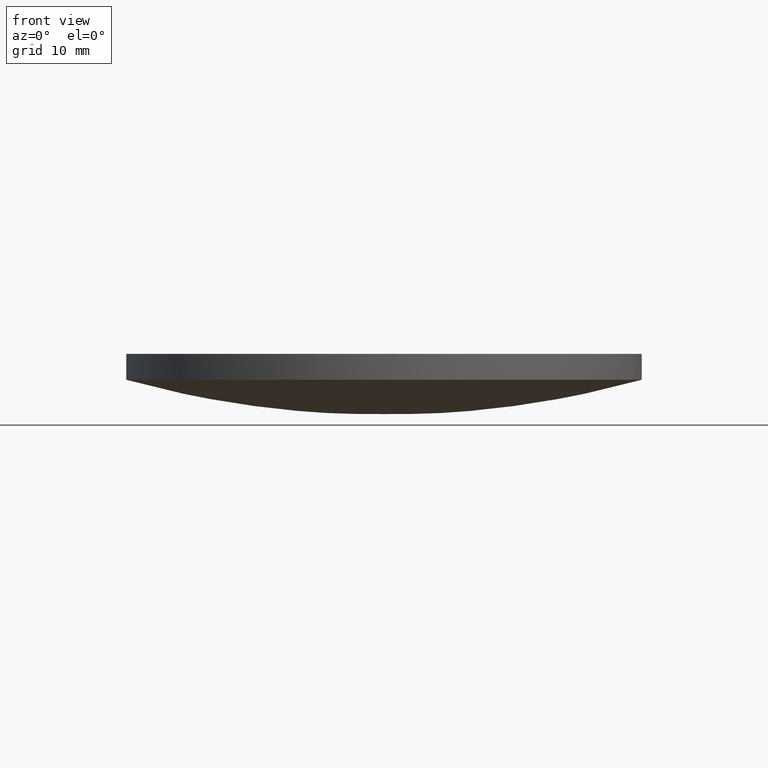
[diagram: clean part render]
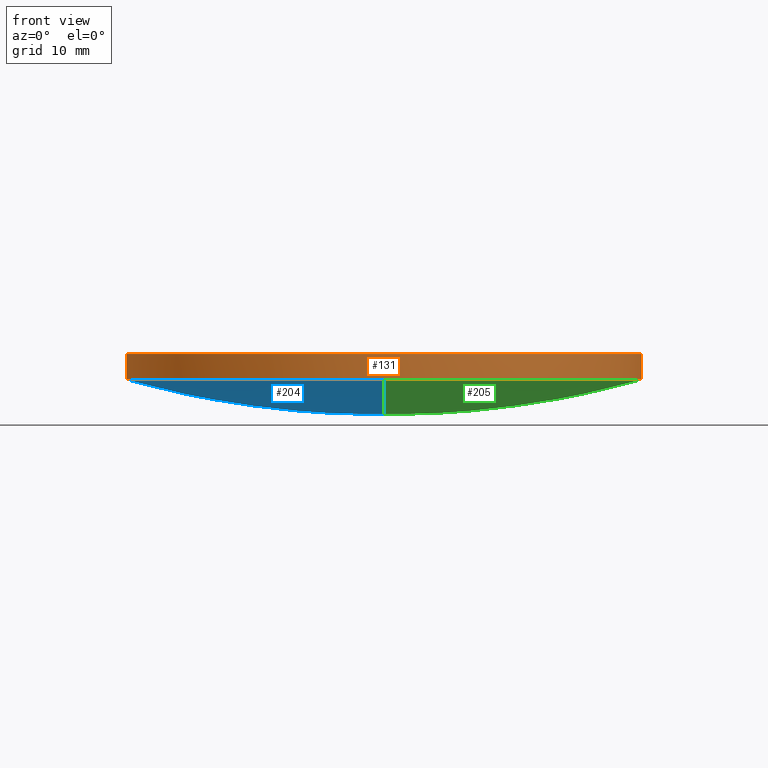
[diagram: same view with three faces highlighted in distinct colors, each labeled with its STEP entity id]
A machine part, front view with three faces highlighted in distinct colors.
Their STEP definitions:

[orange] entity #131 — the highlighted cylindrical surface (partial cylindrical patch) has radius 25.4 mm, axis along (0, 0, 1).
#8 = ORIENTED_EDGE ( 'NONE', *, *, #163, .F. ) ;
#10 = CARTESIAN_POINT ( 'NONE',  ( -25.39999999999999900, 7.995584178184967200E-015, 6.000000000000000000 ) ) ;
#15 = DIRECTION ( 'NONE',  ( -0.0000000000000000000, -0.0000000000000000000, -1.000000000000000000 ) ) ;
#23 = AXIS2_PLACEMENT_3D ( 'NONE', #153, #192, #90 ) ;
#32 = CARTESIAN_POINT ( 'NONE',  ( -25.39999999999999900, 7.995584178184967200E-015, 3.450618463287360000 ) ) ;
#38 = VECTOR ( 'NONE', #203, 1000.000000000000000 ) ;
#50 = ORIENTED_EDGE ( 'NONE', *, *, #98, .F. ) ;
#51 = VERTEX_POINT ( 'NONE', #200 ) ;
#66 = EDGE_CURVE ( 'NONE', #132, #199, #175, .T. ) ;
#87 = EDGE_CURVE ( 'NONE', #51, #109, #218, .T. ) ;
#90 = DIRECTION ( 'NONE',  ( 1.000000000000000000, 0.0000000000000000000, 0.0000000000000000000 ) ) ;
#92 = VERTEX_POINT ( 'NONE', #130 ) ;
#95 = AXIS2_PLACEMENT_3D ( 'NONE', #150, #102, #232 ) ;
#96 = DIRECTION ( 'NONE',  ( 0.0000000000000000000, 0.0000000000000000000, 1.000000000000000000 ) ) ;
#97 = CIRCLE ( 'NONE', #201, 25.39999999999999900 ) ;
#98 = EDGE_CURVE ( 'NONE', #92, #51, #231, .T. ) ;
#99 = DIRECTION ( 'NONE',  ( 1.000000000000000000, 0.0000000000000000000, 0.0000000000000000000 ) ) ;
#102 = DIRECTION ( 'NONE',  ( 0.0000000000000000000, 0.0000000000000000000, 1.000000000000000000 ) ) ;
#103 = CARTESIAN_POINT ( 'NONE',  ( 9.992007221626412800E-016, 4.884981308350691100E-015, 3.450618463287360000 ) ) ;
#109 = VERTEX_POINT ( 'NONE', #10 ) ;
#118 = VECTOR ( 'NONE', #96, 1000.000000000000000 ) ;
#119 = DIRECTION ( 'NONE',  ( -0.0000000000000000000, -0.0000000000000000000, -1.000000000000000000 ) ) ;
#128 = ORIENTED_EDGE ( 'NONE', *, *, #87, .F. ) ;
#130 = CARTESIAN_POINT ( 'NONE',  ( 3.540965199865962800E-014, -25.39999999999998100, 3.450618463287364900 ) ) ;
#131 = ADVANCED_FACE ( 'NONE', ( #145 ), #213, .T. ) ;
#132 = VERTEX_POINT ( 'NONE', #134 ) ;
#134 = CARTESIAN_POINT ( 'NONE',  ( 25.39999999999999900, 4.884981308350691100E-015, 3.450618463287360000 ) ) ;
#145 = FACE_OUTER_BOUND ( 'NONE', #187, .T. ) ;
#150 = CARTESIAN_POINT ( 'NONE',  ( 9.992007221626412800E-016, 4.884981308350691100E-015, 3.450618463287360000 ) ) ;
#153 = CARTESIAN_POINT ( 'NONE',  ( 9.992007221626412800E-016, 4.884981308350691100E-015, 6.000000000000000000 ) ) ;
#156 = CIRCLE ( 'NONE', #23, 25.39999999999999900 ) ;
#163 = EDGE_CURVE ( 'NONE', #132, #92, #97, .T. ) ;
#175 = LINE ( 'NONE', #180, #38 ) ;
#177 = AXIS2_PLACEMENT_3D ( 'NONE', #103, #15, #184 ) ;
#180 = CARTESIAN_POINT ( 'NONE',  ( 25.39999999999999900, 4.884981308350691100E-015, 3.450618463287360000 ) ) ;
#183 = ORIENTED_EDGE ( 'NONE', *, *, #66, .T. ) ;
#184 = DIRECTION ( 'NONE',  ( 1.000000000000000000, 0.0000000000000000000, 0.0000000000000000000 ) ) ;
#187 = EDGE_LOOP ( 'NONE', ( #128, #50, #8, #183, #226 ) ) ;
#188 = CARTESIAN_POINT ( 'NONE',  ( 25.39999999999999900, 4.884981308350691100E-015, 6.000000000000000000 ) ) ;
#192 = DIRECTION ( 'NONE',  ( -0.0000000000000000000, -0.0000000000000000000, -1.000000000000000000 ) ) ;
#199 = VERTEX_POINT ( 'NONE', #188 ) ;
#200 = CARTESIAN_POINT ( 'NONE',  ( -25.39999999999999900, 7.995584178184967200E-015, 3.450618463287360000 ) ) ;
#201 = AXIS2_PLACEMENT_3D ( 'NONE', #206, #119, #99 ) ;
#203 = DIRECTION ( 'NONE',  ( 0.0000000000000000000, 0.0000000000000000000, 1.000000000000000000 ) ) ;
#206 = CARTESIAN_POINT ( 'NONE',  ( 9.992007221626412800E-016, 4.884981308350691100E-015, 3.450618463287360000 ) ) ;
#213 = CYLINDRICAL_SURFACE ( 'NONE', #95, 25.39999999999999900 ) ;
#218 = LINE ( 'NONE', #32, #118 ) ;
#226 = ORIENTED_EDGE ( 'NONE', *, *, #234, .T. ) ;
#231 = CIRCLE ( 'NONE', #177, 25.39999999999999900 ) ;
#232 = DIRECTION ( 'NONE',  ( 1.000000000000000000, 0.0000000000000000000, 0.0000000000000000000 ) ) ;
#234 = EDGE_CURVE ( 'NONE', #199, #109, #156, .T. ) ;

[blue] entity #204 — the highlighted face is a freeform B-spline surface patch.
#7 = CIRCLE ( 'NONE', #9, 25.39999999999999900 ) ;
#9 = AXIS2_PLACEMENT_3D ( 'NONE', #195, #77, #61 ) ;
#15 = DIRECTION ( 'NONE',  ( -0.0000000000000000000, -0.0000000000000000000, -1.000000000000000000 ) ) ;
#17 = VERTEX_POINT ( 'NONE', #144 ) ;
#18 = CARTESIAN_POINT ( 'NONE',  ( 1.734723475976807100E-014, 25.69722050648948700, 3.533411067814825800 ) ) ;
#51 = VERTEX_POINT ( 'NONE', #200 ) ;
#56 = CARTESIAN_POINT ( 'NONE',  ( -25.87271340151603400, 8.783042982134942300, 2.328503816308475500 ) ) ;
#61 = DIRECTION ( 'NONE',  ( 1.000000000000000000, -8.881784197001252300E-016, 0.0000000000000000000 ) ) ;
#71 = CARTESIAN_POINT ( 'NONE',  ( -8.327538271341444100, -25.69722050648948300, 3.533411067814838300 ) ) ;
#73 = CARTESIAN_POINT ( 'NONE',  ( -17.43572612724801700, 8.783042982134940500, -0.02167100524766300100 ) ) ;
#77 = DIRECTION ( 'NONE',  ( -0.0000000000000000000, -0.0000000000000000000, -1.000000000000000000 ) ) ;
#82 = ORIENTED_EDGE ( 'NONE', *, *, #216, .T. ) ;
#84 = EDGE_LOOP ( 'NONE', ( #179, #135, #82 ) ) ;
#85 = DIRECTION ( 'NONE',  ( 1.000000000000000000, 9.414397848674539600E-032, 3.084613711104210100E-016 ) ) ;
#92 = VERTEX_POINT ( 'NONE', #130 ) ;
#98 = EDGE_CURVE ( 'NONE', #92, #51, #231, .T. ) ;
#103 = CARTESIAN_POINT ( 'NONE',  ( 9.992007221626412800E-016, 4.884981308350691100E-015, 3.450618463287360000 ) ) ;
#105 = AXIS2_PLACEMENT_3D ( 'NONE', #146, #85, #212 ) ;
#113 = CIRCLE ( 'NONE', #105, 95.20999999999999400 ) ;
#114 = CARTESIAN_POINT ( 'NONE',  ( -8.327538271341438800, 25.69722050648949000, 3.533411067814824900 ) ) ;
#116 = CARTESIAN_POINT ( 'NONE',  ( -16.57836865590123300, 25.69722050648949400, 4.661104122631369900 ) ) ;
#130 = CARTESIAN_POINT ( 'NONE',  ( 3.540965199865962800E-014, -25.39999999999998100, 3.450618463287364900 ) ) ;
#133 = CARTESIAN_POINT ( 'NONE',  ( 1.387778780781445700E-014, -8.783042982134928100, -1.207683191819579600 ) ) ;
#135 = ORIENTED_EDGE ( 'NONE', *, *, #98, .T. ) ;
#141 = EDGE_CURVE ( 'NONE', #92, #17, #113, .T. ) ;
#144 = CARTESIAN_POINT ( 'NONE',  ( 3.540965199865962800E-014, 25.39999999999999100, 3.450618463287351100 ) ) ;
#146 = CARTESIAN_POINT ( 'NONE',  ( 7.105427357601000300E-015, 7.105427357601000300E-015, 95.20999999999999400 ) ) ;
#147 = CARTESIAN_POINT ( 'NONE',  ( -17.43572612724802100, -8.783042982134926300, -0.02167100524765129200 ) ) ;
#165 = CARTESIAN_POINT ( 'NONE',  ( -25.87271340151603700, -8.783042982134928100, 2.328503816308487900 ) ) ;
#166 = CARTESIAN_POINT ( 'NONE',  ( 1.387778780781445700E-014, -25.69722050648947900, 3.533411067814838300 ) ) ;
#177 = AXIS2_PLACEMENT_3D ( 'NONE', #103, #15, #184 ) ;
#179 = ORIENTED_EDGE ( 'NONE', *, *, #141, .F. ) ;
#184 = DIRECTION ( 'NONE',  ( 1.000000000000000000, 0.0000000000000000000, 0.0000000000000000000 ) ) ;
#186 = CARTESIAN_POINT ( 'NONE',  ( -16.57836865590123700, -25.69722050648947900, 4.661104122631381400 ) ) ;
#191 = FACE_OUTER_BOUND ( 'NONE', #84, .T. ) ;
#195 = CARTESIAN_POINT ( 'NONE',  ( 9.992007221626412800E-016, 4.884981308350691100E-015, 3.450618463287360000 ) ) ;
#200 = CARTESIAN_POINT ( 'NONE',  ( -25.39999999999999900, 7.995584178184967200E-015, 3.450618463287360000 ) ) ;
#204 = ADVANCED_FACE ( 'NONE', ( #191 ), #210, .T. ) ;
#209 = CARTESIAN_POINT ( 'NONE',  ( 2.081668171172168500E-014, 8.783042982134942300, -1.207683191819589800 ) ) ;
#210 =( BOUNDED_SURFACE ( )  B_SPLINE_SURFACE ( 3, 3, ( 
 ( #233, #186, #71, #166 ),
 ( #165, #147, #229, #133 ),
 ( #56, #73, #227, #209 ),
 ( #211, #116, #114, #18 ) ),
 .UNSPECIFIED., .F., .F., .F. ) 
 B_SPLINE_SURFACE_WITH_KNOTS ( ( 4, 4 ),
 ( 4, 4 ),
 ( 0.0000000000000000000, 1.000000000000000000 ),
 ( 0.0000000000000000000, 1.000000000000000000 ),
 .UNSPECIFIED. ) 
 GEOMETRIC_REPRESENTATION_ITEM ( )  RATIONAL_B_SPLINE_SURFACE ( (
 ( 1.000000000000000000, 0.9938590986289715900, 0.9938590986289715900, 1.000000000000000000),
 ( 0.9752588238783401800, 0.9692698556296781600, 0.9692698556296781600, 0.9752588238783401800),
 ( 0.9752588238783401800, 0.9692698556296781600, 0.9692698556296781600, 0.9752588238783401800),
 ( 1.000000000000000000, 0.9938590986289715900, 0.9938590986289715900, 1.000000000000000000) ) ) 
 REPRESENTATION_ITEM ( '' )  SURFACE ( )  );
#211 = CARTESIAN_POINT ( 'NONE',  ( -24.60048854681737000, 25.69722050648949000, 6.895715076785199600 ) ) ;
#212 = DIRECTION ( 'NONE',  ( 0.0000000000000000000, -1.000000000000000000, 2.915195422290611700E-016 ) ) ;
#216 = EDGE_CURVE ( 'NONE', #51, #17, #7, .T. ) ;
#227 = CARTESIAN_POINT ( 'NONE',  ( -8.758200497707079500, 8.783042982134940500, -1.207683191819591200 ) ) ;
#229 = CARTESIAN_POINT ( 'NONE',  ( -8.758200497707084900, -8.783042982134926300, -1.207683191819580100 ) ) ;
#231 = CIRCLE ( 'NONE', #177, 25.39999999999999900 ) ;
#233 = CARTESIAN_POINT ( 'NONE',  ( -24.60048854681737800, -25.69722050648947600, 6.895715076785213800 ) ) ;

[green] entity #205 — the highlighted face is a freeform B-spline surface patch.
#1 = CARTESIAN_POINT ( 'NONE',  ( 16.57836865590124400, 25.69722050648949000, 4.661104122631375200 ) ) ;
#4 = CARTESIAN_POINT ( 'NONE',  ( 25.87271340151602000, -8.783042982134931600, 2.328503816308484400 ) ) ;
#17 = VERTEX_POINT ( 'NONE', #144 ) ;
#19 = CARTESIAN_POINT ( 'NONE',  ( 16.57836865590124400, -25.69722050648948300, 4.661104122631386700 ) ) ;
#21 = CARTESIAN_POINT ( 'NONE',  ( 8.327538271341469000, 25.69722050648949000, 3.533411067814825800 ) ) ;
#22 = CARTESIAN_POINT ( 'NONE',  ( 17.43572612724802100, -8.783042982134928100, -0.02167100524764565100 ) ) ;
#34 =( BOUNDED_SURFACE ( )  B_SPLINE_SURFACE ( 3, 3, ( 
 ( #149, #117, #19, #74 ),
 ( #63, #106, #22, #4 ),
 ( #235, #137, #76, #174 ),
 ( #120, #21, #1, #79 ) ),
 .UNSPECIFIED., .F., .F., .F. ) 
 B_SPLINE_SURFACE_WITH_KNOTS ( ( 4, 4 ),
 ( 4, 4 ),
 ( 0.0000000000000000000, 1.000000000000000000 ),
 ( 0.0000000000000000000, 1.000000000000000000 ),
 .UNSPECIFIED. ) 
 GEOMETRIC_REPRESENTATION_ITEM ( )  RATIONAL_B_SPLINE_SURFACE ( (
 ( 1.000000000000000000, 0.9938590986289715900, 0.9938590986289715900, 1.000000000000000000),
 ( 0.9752588238783401800, 0.9692698556296781600, 0.9692698556296781600, 0.9752588238783401800),
 ( 0.9752588238783401800, 0.9692698556296781600, 0.9692698556296781600, 0.9752588238783401800),
 ( 1.000000000000000000, 0.9938590986289715900, 0.9938590986289715900, 1.000000000000000000) ) ) 
 REPRESENTATION_ITEM ( '' )  SURFACE ( )  );
#36 = DIRECTION ( 'NONE',  ( 1.000000000000000000, 1.776356839400250500E-015, 0.0000000000000000000 ) ) ;
#54 = FACE_OUTER_BOUND ( 'NONE', #208, .T. ) ;
#63 = CARTESIAN_POINT ( 'NONE',  ( 3.684655811423986700E-014, -8.783042982134933400, -1.207683191819580300 ) ) ;
#74 = CARTESIAN_POINT ( 'NONE',  ( 24.60048854681736000, -25.69722050648947900, 6.895715076785210200 ) ) ;
#76 = CARTESIAN_POINT ( 'NONE',  ( 17.43572612724802400, 8.783042982134938700, -0.02167100524765779700 ) ) ;
#79 = CARTESIAN_POINT ( 'NONE',  ( 24.60048854681736000, 25.69722050648948700, 6.895715076785196000 ) ) ;
#85 = DIRECTION ( 'NONE',  ( 1.000000000000000000, 9.414397848674539600E-032, 3.084613711104210100E-016 ) ) ;
#92 = VERTEX_POINT ( 'NONE', #130 ) ;
#94 = ORIENTED_EDGE ( 'NONE', *, *, #141, .T. ) ;
#97 = CIRCLE ( 'NONE', #201, 25.39999999999999900 ) ;
#99 = DIRECTION ( 'NONE',  ( 1.000000000000000000, 0.0000000000000000000, 0.0000000000000000000 ) ) ;
#105 = AXIS2_PLACEMENT_3D ( 'NONE', #146, #85, #212 ) ;
#106 = CARTESIAN_POINT ( 'NONE',  ( 8.758200497707113300, -8.783042982134929800, -1.207683191819577800 ) ) ;
#112 = CIRCLE ( 'NONE', #126, 25.39999999999999900 ) ;
#113 = CIRCLE ( 'NONE', #105, 95.20999999999999400 ) ;
#115 = CARTESIAN_POINT ( 'NONE',  ( 9.992007221626412800E-016, 4.884981308350691100E-015, 3.450618463287360000 ) ) ;
#117 = CARTESIAN_POINT ( 'NONE',  ( 8.327538271341470700, -25.69722050648948300, 3.533411067814840500 ) ) ;
#119 = DIRECTION ( 'NONE',  ( -0.0000000000000000000, -0.0000000000000000000, -1.000000000000000000 ) ) ;
#120 = CARTESIAN_POINT ( 'NONE',  ( 3.538411367834928100E-014, 25.69722050648948700, 3.533411067814823200 ) ) ;
#126 = AXIS2_PLACEMENT_3D ( 'NONE', #115, #168, #36 ) ;
#130 = CARTESIAN_POINT ( 'NONE',  ( 3.540965199865962800E-014, -25.39999999999998100, 3.450618463287364900 ) ) ;
#132 = VERTEX_POINT ( 'NONE', #134 ) ;
#134 = CARTESIAN_POINT ( 'NONE',  ( 25.39999999999999900, 4.884981308350691100E-015, 3.450618463287360000 ) ) ;
#137 = CARTESIAN_POINT ( 'NONE',  ( 8.758200497707115100, 8.783042982134936900, -1.207683191819590700 ) ) ;
#138 = ORIENTED_EDGE ( 'NONE', *, *, #189, .T. ) ;
#141 = EDGE_CURVE ( 'NONE', #92, #17, #113, .T. ) ;
#144 = CARTESIAN_POINT ( 'NONE',  ( 3.540965199865962800E-014, 25.39999999999999100, 3.450618463287351100 ) ) ;
#146 = CARTESIAN_POINT ( 'NONE',  ( 7.105427357601000300E-015, 7.105427357601000300E-015, 95.20999999999999400 ) ) ;
#149 = CARTESIAN_POINT ( 'NONE',  ( 3.538411367834928700E-014, -25.69722050648947900, 3.533411067814837400 ) ) ;
#160 = ORIENTED_EDGE ( 'NONE', *, *, #163, .T. ) ;
#163 = EDGE_CURVE ( 'NONE', #132, #92, #97, .T. ) ;
#168 = DIRECTION ( 'NONE',  ( -0.0000000000000000000, -0.0000000000000000000, -1.000000000000000000 ) ) ;
#174 = CARTESIAN_POINT ( 'NONE',  ( 25.87271340151602300, 8.783042982134940500, 2.328503816308471900 ) ) ;
#189 = EDGE_CURVE ( 'NONE', #17, #132, #112, .T. ) ;
#201 = AXIS2_PLACEMENT_3D ( 'NONE', #206, #119, #99 ) ;
#205 = ADVANCED_FACE ( 'NONE', ( #54 ), #34, .T. ) ;
#206 = CARTESIAN_POINT ( 'NONE',  ( 9.992007221626412800E-016, 4.884981308350691100E-015, 3.450618463287360000 ) ) ;
#208 = EDGE_LOOP ( 'NONE', ( #160, #94, #138 ) ) ;
#212 = DIRECTION ( 'NONE',  ( 0.0000000000000000000, -1.000000000000000000, 2.915195422290611700E-016 ) ) ;
#235 = CARTESIAN_POINT ( 'NONE',  ( 3.684655811423986700E-014, 8.783042982134938700, -1.207683191819593600 ) ) ;